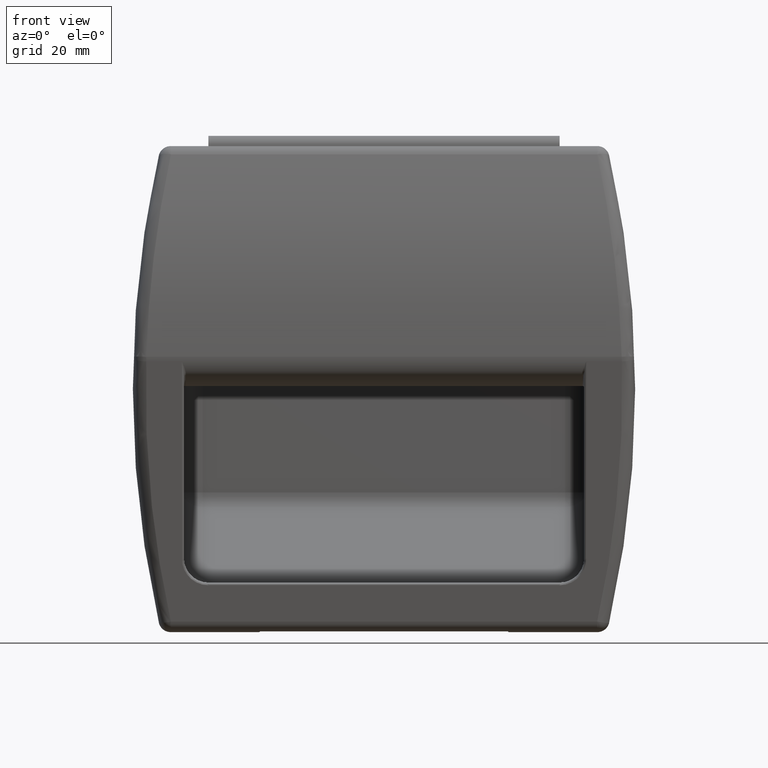
[diagram: clean part render]
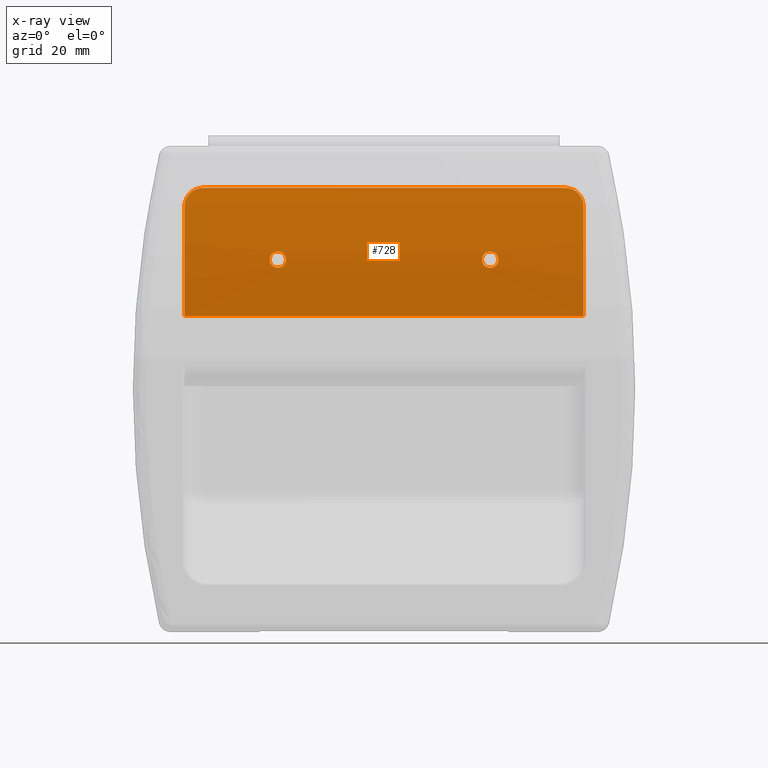
[diagram: x-ray — body ghosted, one internal face saturated and labeled with its STEP entity id]
A machine part, front view, then the same camera in x-ray: the body is ghosted and one INTERNAL B-rep face — a face not visible from any outside direction — is saturated and labeled: STEP entity #728.
In plain terms, the highlighted cylindrical surface (partial cylindrical patch) has radius 150 mm, axis along (-1, 0, 0).
Its self-contained STEP definition (entity closure, byte-faithful):
#728=ADVANCED_FACE('',(#6660,#6661,#6662),#6659,.F.);
#6659=CYLINDRICAL_SURFACE('',#13576,1.50000000000E+02);
#6660=FACE_OUTER_BOUND('',#13577,.T.);
#6661=FACE_BOUND('',#13578,.T.);
#6662=FACE_BOUND('',#13579,.T.);
#13573=CARTESIAN_POINT('',(-2.57120344491E+02,1.40175836261E+02,5.07089080271E+00));
#13574=DIRECTION('',(-1.00000000000E+00,4.62058807963E-16,1.49742358612E-15));
#13575=DIRECTION('',(9.36772324950E-31,9.55543180215E-01,-2.94851201022E-01));
#13576=AXIS2_PLACEMENT_3D('',#13573,#13574,#13575);
#13577=EDGE_LOOP('',(#19248,#19249,#19250,#19251,#19252,#19253));
#13578=EDGE_LOOP('',(#19254,#19255));
#13579=EDGE_LOOP('',(#19256,#19257));
#19248=ORIENTED_EDGE('',*,*,#21461,.T.);
#19249=ORIENTED_EDGE('',*,*,#21170,.T.);
#19250=ORIENTED_EDGE('',*,*,#21331,.T.);
#19251=ORIENTED_EDGE('',*,*,#21205,.F.);
#19252=ORIENTED_EDGE('',*,*,#21173,.F.);
#19253=ORIENTED_EDGE('',*,*,#21462,.T.);
#19254=ORIENTED_EDGE('',*,*,#21463,.T.);
#19255=ORIENTED_EDGE('',*,*,#21464,.T.);
#19256=ORIENTED_EDGE('',*,*,#21465,.F.);
#19257=ORIENTED_EDGE('',*,*,#21466,.F.);
#21170=EDGE_CURVE('',#30188,#30181,#30189,.T.);
#21173=EDGE_CURVE('',#30201,#30209,#30210,.T.);
#21205=EDGE_CURVE('',#30209,#30432,#30433,.T.);
#21331=EDGE_CURVE('',#30181,#30432,#31285,.T.);
#21461=EDGE_CURVE('',#32144,#30188,#32145,.T.);
#21462=EDGE_CURVE('',#30201,#32144,#32151,.T.);
#21463=EDGE_CURVE('',#32157,#32158,#32159,.T.);
#21464=EDGE_CURVE('',#32158,#32157,#32165,.T.);
#21465=EDGE_CURVE('',#32171,#32172,#32173,.T.);
#21466=EDGE_CURVE('',#32172,#32171,#32179,.T.);
#30181=VERTEX_POINT('',#39157);
#30188=VERTEX_POINT('',#39162);
#30189=CIRCLE('',#39166,1.50000000000E+02);
#30201=VERTEX_POINT('',#39171);
#30209=VERTEX_POINT('',#39177);
#30210=(BOUNDED_CURVE() B_SPLINE_CURVE(3,(#39178,#39179,#39180,#39181,#39182,#39183,#39184,#39185,#39186,#39187,#39188,#39189,#39190,#39191,#39192,#39193,#39194,#39195),.UNSPECIFIED.,.F.,.F.) B_SPLINE_CURVE_WITH_KNOTS((4,2,2,2,2,2,2,2,4),(0.00000000000E+00,9.08258828072E-04,1.81651765614E-03,2.72477648422E-03,3.63303531229E-03,4.54129414036E-03,5.44955296843E-03,6.35781179650E-03,7.26607062457E-03),.UNSPECIFIED.) CURVE() GEOMETRIC_REPRESENTATION_ITEM() RATIONAL_B_SPLINE_CURVE((1.00000000000E+00,1.00000000000E+00,1.00000000000E+00,1.00000000000E+00,1.00000000000E+00,1.00000000000E+00,1.00000000000E+00,1.00000000000E+00,1.00000000000E+00,1.00000000000E+00,1.00000000000E+00,1.00000000000E+00,1.00000000000E+00,1.00000000000E+00,1.00000000000E+00,1.00000000000E+00,1.00000000000E+00,1.00000000000E+00)) REPRESENTATION_ITEM('') );
#30432=VERTEX_POINT('',#39386);
#30433=CIRCLE('',#39390,1.50000000000E+02);
#31285=LINE('',#39967,#39968);
#32144=VERTEX_POINT('',#40553);
#32145=(BOUNDED_CURVE() B_SPLINE_CURVE(3,(#40554,#40555,#40556,#40557,#40558,#40559,#40560,#40561,#40562,#40563,#40564,#40565,#40566,#40567,#40568,#40569,#40570,#40571),.UNSPECIFIED.,.F.,.F.) B_SPLINE_CURVE_WITH_KNOTS((4,2,2,2,2,2,2,2,4),(0.00000000000E+00,9.08258828072E-04,1.81651765614E-03,2.72477648422E-03,3.63303531229E-03,4.54129414036E-03,5.44955296843E-03,6.35781179650E-03,7.26607062457E-03),.UNSPECIFIED.) CURVE() GEOMETRIC_REPRESENTATION_ITEM() RATIONAL_B_SPLINE_CURVE((1.00000000000E+00,1.00000000000E+00,1.00000000000E+00,1.00000000000E+00,1.00000000000E+00,1.00000000000E+00,1.00000000000E+00,1.00000000000E+00,1.00000000000E+00,1.00000000000E+00,1.00000000000E+00,1.00000000000E+00,1.00000000000E+00,1.00000000000E+00,1.00000000000E+00,1.00000000000E+00,1.00000000000E+00,1.00000000000E+00)) REPRESENTATION_ITEM('') );
#32151=LINE('',#40572,#40573);
#32157=VERTEX_POINT('',#40575);
#32158=VERTEX_POINT('',#40576);
#32159=(BOUNDED_CURVE() B_SPLINE_CURVE(3,(#40577,#40578,#40579,#40580,#40581,#40582,#40583,#40584,#40585,#40586,#40587,#40588,#40589,#40590,#40591,#40592,#40593,#40594,#40595,#40596,#40597,#40598,#40599,#40600,#40601,#40602,#40603,#40604,#40605,#40606,#40607,#40608),.UNSPECIFIED.,.F.,.F.) B_SPLINE_CURVE_WITH_KNOTS((4,2,2,2,2,2,2,2,2,2,2,2,2,2,2,4),(1.23330994336E-02,1.27313672789E-02,1.31296351242E-02,1.35279029695E-02,1.39261708148E-02,1.47227065054E-02,1.51209743507E-02,1.55192421960E-02,1.59175100413E-02,1.63157778866E-02,1.67140457319E-02,1.71123135772E-02,1.75105814225E-02,1.79088492678E-02,1.83071171131E-02,1.87053849584E-02),.UNSPECIFIED.) CURVE() GEOMETRIC_REPRESENTATION_ITEM() RATIONAL_B_SPLINE_CURVE((1.00000000000E+00,1.00000000000E+00,1.00000000000E+00,1.00000000000E+00,1.00000000000E+00,1.00000000000E+00,1.00000000000E+00,1.00000000000E+00,1.00000000000E+00,1.00000000000E+00,1.00000000000E+00,1.00000000000E+00,1.00000000000E+00,1.00000000000E+00,1.00000000000E+00,1.00000000000E+00,1.00000000000E+00,1.00000000000E+00,1.00000000000E+00,1.00000000000E+00,1.00000000000E+00,1.00000000000E+00,1.00000000000E+00,1.00000000000E+00,1.00000000000E+00,1.00000000000E+00,1.00000000000E+00,1.00000000000E+00,1.00000000000E+00,1.00000000000E+00,1.00000000000E+00,1.00000000000E+00)) REPRESENTATION_ITEM('') );
#32165=(BOUNDED_CURVE() B_SPLINE_CURVE(3,(#40609,#40610,#40611,#40612,#40613,#40614,#40615,#40616,#40617,#40618,#40619,#40620,#40621,#40622,#40623,#40624,#40625,#40626,#40627,#40628,#40629,#40630,#40631,#40632,#40633,#40634,#40635,#40636,#40637,#40638),.UNSPECIFIED.,.F.,.F.) B_SPLINE_CURVE_WITH_KNOTS((4,2,2,2,2,2,2,2,2,2,2,2,2,2,4),(1.87053849584E-02,1.91036528037E-02,1.95019206490E-02,2.02984563396E-02,2.06967241849E-02,2.10949920302E-02,2.14932598755E-02,2.18915277208E-02,2.26880634114E-02,2.30863312567E-02,2.34845991020E-02,2.38828669473E-02,2.42811347926E-02,2.46794026379E-02,2.50776704832E-02),.UNSPECIFIED.) CURVE() GEOMETRIC_REPRESENTATION_ITEM() RATIONAL_B_SPLINE_CURVE((1.00000000000E+00,1.00000000000E+00,1.00000000000E+00,1.00000000000E+00,1.00000000000E+00,1.00000000000E+00,1.00000000000E+00,1.00000000000E+00,1.00000000000E+00,1.00000000000E+00,1.00000000000E+00,1.00000000000E+00,1.00000000000E+00,1.00000000000E+00,1.00000000000E+00,1.00000000000E+00,1.00000000000E+00,1.00000000000E+00,1.00000000000E+00,1.00000000000E+00,1.00000000000E+00,1.00000000000E+00,1.00000000000E+00,1.00000000000E+00,1.00000000000E+00,1.00000000000E+00,1.00000000000E+00,1.00000000000E+00,1.00000000000E+00,1.00000000000E+00)) REPRESENTATION_ITEM('') );
#32171=VERTEX_POINT('',#40639);
#32172=VERTEX_POINT('',#40640);
#32173=(BOUNDED_CURVE() B_SPLINE_CURVE(3,(#40641,#40642,#40643,#40644,#40645,#40646,#40647,#40648,#40649,#40650,#40651,#40652,#40653,#40654,#40655,#40656,#40657,#40658,#40659,#40660,#40661,#40662,#40663,#40664,#40665,#40666,#40667,#40668,#40669,#40670),.UNSPECIFIED.,.F.,.F.) B_SPLINE_CURVE_WITH_KNOTS((4,2,2,2,2,2,2,2,2,2,2,2,2,2,4),(1.87053849584E-02,1.91036528037E-02,1.95019206490E-02,2.02984563396E-02,2.06967241849E-02,2.10949920302E-02,2.14932598755E-02,2.18915277208E-02,2.26880634114E-02,2.30863312567E-02,2.34845991020E-02,2.38828669473E-02,2.42811347926E-02,2.46794026379E-02,2.50776704832E-02),.UNSPECIFIED.) CURVE() GEOMETRIC_REPRESENTATION_ITEM() RATIONAL_B_SPLINE_CURVE((1.00000000000E+00,1.00000000000E+00,1.00000000000E+00,1.00000000000E+00,1.00000000000E+00,1.00000000000E+00,1.00000000000E+00,1.00000000000E+00,1.00000000000E+00,1.00000000000E+00,1.00000000000E+00,1.00000000000E+00,1.00000000000E+00,1.00000000000E+00,1.00000000000E+00,1.00000000000E+00,1.00000000000E+00,1.00000000000E+00,1.00000000000E+00,1.00000000000E+00,1.00000000000E+00,1.00000000000E+00,1.00000000000E+00,1.00000000000E+00,1.00000000000E+00,1.00000000000E+00,1.00000000000E+00,1.00000000000E+00,1.00000000000E+00,1.00000000000E+00)) REPRESENTATION_ITEM('') );
#32179=(BOUNDED_CURVE() B_SPLINE_CURVE(3,(#40671,#40672,#40673,#40674,#40675,#40676,#40677,#40678,#40679,#40680,#40681,#40682,#40683,#40684,#40685,#40686,#40687,#40688,#40689,#40690,#40691,#40692,#40693,#40694,#40695,#40696,#40697,#40698,#40699,#40700,#40701,#40702),.UNSPECIFIED.,.F.,.F.) B_SPLINE_CURVE_WITH_KNOTS((4,2,2,2,2,2,2,2,2,2,2,2,2,2,2,4),(1.23330994336E-02,1.27313672789E-02,1.31296351242E-02,1.35279029695E-02,1.39261708148E-02,1.47227065054E-02,1.51209743507E-02,1.55192421960E-02,1.59175100413E-02,1.63157778866E-02,1.67140457319E-02,1.71123135772E-02,1.75105814225E-02,1.79088492678E-02,1.83071171131E-02,1.87053849584E-02),.UNSPECIFIED.) CURVE() GEOMETRIC_REPRESENTATION_ITEM() RATIONAL_B_SPLINE_CURVE((1.00000000000E+00,1.00000000000E+00,1.00000000000E+00,1.00000000000E+00,1.00000000000E+00,1.00000000000E+00,1.00000000000E+00,1.00000000000E+00,1.00000000000E+00,1.00000000000E+00,1.00000000000E+00,1.00000000000E+00,1.00000000000E+00,1.00000000000E+00,1.00000000000E+00,1.00000000000E+00,1.00000000000E+00,1.00000000000E+00,1.00000000000E+00,1.00000000000E+00,1.00000000000E+00,1.00000000000E+00,1.00000000000E+00,1.00000000000E+00,1.00000000000E+00,1.00000000000E+00,1.00000000000E+00,1.00000000000E+00,1.00000000000E+00,1.00000000000E+00,1.00000000000E+00,1.00000000000E+00)) REPRESENTATION_ITEM('') );
#39157=CARTESIAN_POINT('',(-1.49650344492E+02,-9.27738849445E+00,1.78667342710E+01));
#39162=CARTESIAN_POINT('',(-1.49650344492E+02,-4.47200607529E+00,4.47823716027E+01));
#39163=CARTESIAN_POINT('',(-1.49650344492E+02,1.40175836261E+02,5.07089080271E+00));
#39164=DIRECTION('',(1.00000000000E+00,4.38994859223E-14,-1.11509978121E-14));
#39165=DIRECTION('',(-4.52852570258E-14,9.64318948912E-01,-2.64743205333E-01));
#39166=AXIS2_PLACEMENT_3D('',#39163,#39164,#39165);
#39171=CARTESIAN_POINT('',(-2.42850344491E+02,-3.15599536924E+00,4.92974217699E+01));
#39177=CARTESIAN_POINT('',(-2.47350344491E+02,-4.47200607529E+00,4.47823716027E+01));
#39178=CARTESIAN_POINT('',(-2.42850344491E+02,-3.15599536924E+00,4.92974217699E+01));
#39179=CARTESIAN_POINT('',(-2.43154456178E+02,-3.15599536924E+00,4.92974217699E+01));
#39180=CARTESIAN_POINT('',(-2.43457081858E+02,-3.16555787797E+00,4.92664650340E+01));
#39181=CARTESIAN_POINT('',(-2.44049434896E+02,-3.20303269073E+00,4.91447378490E+01));
#39182=CARTESIAN_POINT('',(-2.44334160618E+02,-3.23051899989E+00,4.90553440949E+01));
#39183=CARTESIAN_POINT('',(-2.44881831478E+02,-3.30182166367E+00,4.88221940642E+01));
#39184=CARTESIAN_POINT('',(-2.45147485942E+02,-3.34632330578E+00,4.86761705560E+01));
#39185=CARTESIAN_POINT('',(-2.45636047399E+02,-3.44781681889E+00,4.83407068996E+01));
#39186=CARTESIAN_POINT('',(-2.45860622977E+02,-3.50479194943E+00,4.81513426557E+01));
#39187=CARTESIAN_POINT('',(-2.46271396490E+02,-3.63035518590E+00,4.77303276994E+01));
#39188=CARTESIAN_POINT('',(-2.46457536361E+02,-3.69929200626E+00,4.74974398589E+01));
#39189=CARTESIAN_POINT('',(-2.46775483079E+02,-3.84224227124E+00,4.70096277248E+01));
#39190=CARTESIAN_POINT('',(-2.46909814727E+02,-3.91693235619E+00,4.67524607495E+01));
#39191=CARTESIAN_POINT('',(-2.47128935869E+02,-4.07236058019E+00,4.62113447266E+01));
#39192=CARTESIAN_POINT('',(-2.47212015022E+02,-4.15228406368E+00,4.59301658543E+01));
#39193=CARTESIAN_POINT('',(-2.47322211302E+02,-4.31156050572E+00,4.53633075802E+01));
#39194=CARTESIAN_POINT('',(-2.47350344491E+02,-4.39159764816E+00,4.50752568151E+01));
#39195=CARTESIAN_POINT('',(-2.47350344491E+02,-4.47200607529E+00,4.47823716027E+01));
#39386=CARTESIAN_POINT('',(-2.47350344491E+02,-9.27738849445E+00,1.78667342710E+01));
#39387=CARTESIAN_POINT('',(-2.47350344491E+02,1.40175836261E+02,5.07089080271E+00));
#39388=DIRECTION('',(1.00000000000E+00,4.38844356301E-14,-1.12058180365E-14));
#39389=DIRECTION('',(-4.52852570258E-14,9.64318948912E-01,-2.64743205333E-01));
#39390=AXIS2_PLACEMENT_3D('',#39387,#39388,#39389);
#39967=CARTESIAN_POINT('',(-1.49650344492E+02,-9.27738849445E+00,1.78667342710E+01));
#39968=VECTOR('',#39969,9.76999999995E+01);
#39969=DIRECTION('',(-1.00000000000E+00,0.00000000000E+00,0.00000000000E+00));
#40553=CARTESIAN_POINT('',(-1.54150344492E+02,-3.15599536924E+00,4.92974217699E+01));
#40554=CARTESIAN_POINT('',(-1.54150344492E+02,-3.15599536924E+00,4.92974217699E+01));
#40555=CARTESIAN_POINT('',(-1.53846232804E+02,-3.15599536924E+00,4.92974217699E+01));
#40556=CARTESIAN_POINT('',(-1.53543607125E+02,-3.16555787797E+00,4.92664650340E+01));
#40557=CARTESIAN_POINT('',(-1.52951254086E+02,-3.20303269073E+00,4.91447378490E+01));
#40558=CARTESIAN_POINT('',(-1.52666528364E+02,-3.23051899989E+00,4.90553440949E+01));
#40559=CARTESIAN_POINT('',(-1.52118857505E+02,-3.30182166367E+00,4.88221940642E+01));
#40560=CARTESIAN_POINT('',(-1.51853203041E+02,-3.34632330578E+00,4.86761705560E+01));
#40561=CARTESIAN_POINT('',(-1.51364641584E+02,-3.44781681889E+00,4.83407068996E+01));
#40562=CARTESIAN_POINT('',(-1.51140066006E+02,-3.50479194943E+00,4.81513426557E+01));
#40563=CARTESIAN_POINT('',(-1.50729292492E+02,-3.63035518590E+00,4.77303276994E+01));
#40564=CARTESIAN_POINT('',(-1.50543152622E+02,-3.69929200626E+00,4.74974398589E+01));
#40565=CARTESIAN_POINT('',(-1.50225205903E+02,-3.84224227124E+00,4.70096277248E+01));
#40566=CARTESIAN_POINT('',(-1.50090874256E+02,-3.91693235619E+00,4.67524607495E+01));
#40567=CARTESIAN_POINT('',(-1.49871753114E+02,-4.07236058019E+00,4.62113447266E+01));
#40568=CARTESIAN_POINT('',(-1.49788673960E+02,-4.15228406368E+00,4.59301658543E+01));
#40569=CARTESIAN_POINT('',(-1.49678477680E+02,-4.31156050572E+00,4.53633075802E+01));
#40570=CARTESIAN_POINT('',(-1.49650344492E+02,-4.39159764816E+00,4.50752568151E+01));
#40571=CARTESIAN_POINT('',(-1.49650344492E+02,-4.47200607529E+00,4.47823716027E+01));
#40572=CARTESIAN_POINT('',(-2.42850344491E+02,-3.15599536924E+00,4.92974217699E+01));
#40573=VECTOR('',#40574,8.86999999995E+01);
#40574=DIRECTION('',(1.00000000000E+00,0.00000000000E+00,0.00000000000E+00));
#40575=CARTESIAN_POINT('',(-1.72908265205E+02,-7.78125861827E+00,2.97426980887E+01));
#40576=CARTESIAN_POINT('',(-1.72094665812E+02,-7.07620042028E+00,3.36512633175E+01));
#40577=CARTESIAN_POINT('',(-1.72908265205E+02,-7.78125861827E+00,2.97426980887E+01));
#40578=CARTESIAN_POINT('',(-1.72778085310E+02,-7.78577212071E+00,2.97156305658E+01));
#40579=CARTESIAN_POINT('',(-1.72646520609E+02,-7.78809561074E+00,2.97016615117E+01));
#40580=CARTESIAN_POINT('',(-1.72380623456E+02,-7.78838776405E+00,2.96999064007E+01));
#40581=CARTESIAN_POINT('',(-1.72247241061E+02,-7.78630613644E+00,2.97124221609E+01));
#40582=CARTESIAN_POINT('',(-1.71988460251E+02,-7.77791689813E+00,2.97627432372E+01));
#40583=CARTESIAN_POINT('',(-1.71862933393E+02,-7.77165459323E+00,2.98002761919E+01));
#40584=CARTESIAN_POINT('',(-1.71619557928E+02,-7.75496447237E+00,2.98999211135E+01));
#40585=CARTESIAN_POINT('',(-1.71501617600E+02,-7.74445674297E+00,2.99625017001E+01));
#40586=CARTESIAN_POINT('',(-1.71174886365E+02,-7.70785049140E+00,3.01793892587E+01));
#40587=CARTESIAN_POINT('',(-1.70984774644E+02,-7.67566792900E+00,3.03687275243E+01));
#40588=CARTESIAN_POINT('',(-1.70767319034E+02,-7.61986759965E+00,3.06920125335E+01));
#40589=CARTESIAN_POINT('',(-1.70704750618E+02,-7.59971108141E+00,3.08080726275E+01));
#40590=CARTESIAN_POINT('',(-1.70604180649E+02,-7.55759763478E+00,3.10487165391E+01));
#40591=CARTESIAN_POINT('',(-1.70566231252E+02,-7.53580343749E+00,3.11723873617E+01));
#40592=CARTESIAN_POINT('',(-1.70514542468E+02,-7.49071197597E+00,3.14262917067E+01));
#40593=CARTESIAN_POINT('',(-1.70501008083E+02,-7.46722480033E+00,3.15575627906E+01));
#40594=CARTESIAN_POINT('',(-1.70499729560E+02,-7.42058447069E+00,3.18162429175E+01));
#40595=CARTESIAN_POINT('',(-1.70511572603E+02,-7.39723563219E+00,3.19447685512E+01));
#40596=CARTESIAN_POINT('',(-1.70560620908E+02,-7.35049751903E+00,3.22001682472E+01));
#40597=CARTESIAN_POINT('',(-1.70597929549E+02,-7.32729118397E+00,3.23260229017E+01));
#40598=CARTESIAN_POINT('',(-1.70695075965E+02,-7.28283937704E+00,3.25655050182E+01));
#40599=CARTESIAN_POINT('',(-1.70755154515E+02,-7.26134604526E+00,3.26804862549E+01));
#40600=CARTESIAN_POINT('',(-1.70899291354E+02,-7.22004491828E+00,3.29001325967E+01));
#40601=CARTESIAN_POINT('',(-1.70981002633E+02,-7.20090704498E+00,3.30012405091E+01));
#40602=CARTESIAN_POINT('',(-1.71163071057E+02,-7.16565325312E+00,3.31866225193E+01));
#40603=CARTESIAN_POINT('',(-1.71264647490E+02,-7.14938813437E+00,3.32716694602E+01));
#40604=CARTESIAN_POINT('',(-1.71481666430E+02,-7.12102522295E+00,3.34194402720E+01));
#40605=CARTESIAN_POINT('',(-1.71596264169E+02,-7.10896395880E+00,3.34819863539E+01));
#40606=CARTESIAN_POINT('',(-1.71837581734E+02,-7.08914871678E+00,3.35845178203E+01));
#40607=CARTESIAN_POINT('',(-1.71965213523E+02,-7.08139468447E+00,3.36245013857E+01));
#40608=CARTESIAN_POINT('',(-1.72094665812E+02,-7.07620042028E+00,3.36512633175E+01));
#40609=CARTESIAN_POINT('',(-1.72094665812E+02,-7.07620042028E+00,3.36512633175E+01));
#40610=CARTESIAN_POINT('',(-1.72224118101E+02,-7.07100615609E+00,3.36780252494E+01));
#40611=CARTESIAN_POINT('',(-1.72357332680E+02,-7.06829404447E+00,3.36919685435E+01));
#40612=CARTESIAN_POINT('',(-1.72620355306E+02,-7.06800063162E+00,3.36934779954E+01));
#40613=CARTESIAN_POINT('',(-1.72750977066E+02,-7.07034877695E+00,3.36814071254E+01));
#40614=CARTESIAN_POINT('',(-1.73140136299E+02,-7.08495376588E+00,3.36061730155E+01));
#40615=CARTESIAN_POINT('',(-1.73386872329E+02,-7.10454583660E+00,3.35052193607E+01));
#40616=CARTESIAN_POINT('',(-1.73716532417E+02,-7.14649663391E+00,3.32867680378E+01));
#40617=CARTESIAN_POINT('',(-1.73817547103E+02,-7.16226859732E+00,3.32043507213E+01));
#40618=CARTESIAN_POINT('',(-1.74002466273E+02,-7.19716352492E+00,3.30209828299E+01));
#40619=CARTESIAN_POINT('',(-1.74087008531E+02,-7.21651237655E+00,3.29188279617E+01));
#40620=CARTESIAN_POINT('',(-1.74232412953E+02,-7.25709859921E+00,3.27031502002E+01));
#40621=CARTESIAN_POINT('',(-1.74293985717E+02,-7.27840212042E+00,3.25892928753E+01));
#40622=CARTESIAN_POINT('',(-1.74394853228E+02,-7.32294850625E+00,3.23495154281E+01));
#40623=CARTESIAN_POINT('',(-1.74433689885E+02,-7.34614547939E+00,3.22238177318E+01));
#40624=CARTESIAN_POINT('',(-1.74511584487E+02,-7.41565662140E+00,3.18443362076E+01));
#40625=CARTESIAN_POINT('',(-1.74513536294E+02,-7.46363469954E+00,3.15784943535E+01));
#40626=CARTESIAN_POINT('',(-1.74441180998E+02,-7.53130222765E+00,3.11978471367E+01));
#40627=CARTESIAN_POINT('',(-1.74404287570E+02,-7.55353161909E+00,3.10718321987E+01));
#40628=CARTESIAN_POINT('',(-1.74306601111E+02,-7.59591699230E+00,3.08298509559E+01));
#40629=CARTESIAN_POINT('',(-1.74246549457E+02,-7.61588359632E+00,3.07149882350E+01));
#40630=CARTESIAN_POINT('',(-1.74104308426E+02,-7.65347689941E+00,3.04973801793E+01));
#40631=CARTESIAN_POINT('',(-1.74021058853E+02,-7.67124655829E+00,3.03937864257E+01));
#40632=CARTESIAN_POINT('',(-1.73838230749E+02,-7.70305515486E+00,3.02073665804E+01));
#40633=CARTESIAN_POINT('',(-1.73738362339E+02,-7.71725191097E+00,3.01236374678E+01));
#40634=CARTESIAN_POINT('',(-1.73521435077E+02,-7.74227414020E+00,2.99754739120E+01));
#40635=CARTESIAN_POINT('',(-1.73404540690E+02,-7.75300683540E+00,2.99115847383E+01));
#40636=CARTESIAN_POINT('',(-1.73163645861E+02,-7.77016613531E+00,2.98091823766E+01));
#40637=CARTESIAN_POINT('',(-1.73038445099E+02,-7.77674511583E+00,2.97697656116E+01));
#40638=CARTESIAN_POINT('',(-1.72908265205E+02,-7.78125861827E+00,2.97426980887E+01));
#40639=CARTESIAN_POINT('',(-2.24906023171E+02,-7.07620042028E+00,3.36512633175E+01));
#40640=CARTESIAN_POINT('',(-2.24092423778E+02,-7.78125861827E+00,2.97426980887E+01));
#40641=CARTESIAN_POINT('',(-2.24906023171E+02,-7.07620042028E+00,3.36512633175E+01));
#40642=CARTESIAN_POINT('',(-2.24776570882E+02,-7.07100615609E+00,3.36780252494E+01));
#40643=CARTESIAN_POINT('',(-2.24643356303E+02,-7.06829404447E+00,3.36919685435E+01));
#40644=CARTESIAN_POINT('',(-2.24380333677E+02,-7.06800063162E+00,3.36934779954E+01));
#40645=CARTESIAN_POINT('',(-2.24249711916E+02,-7.07034877695E+00,3.36814071254E+01));
#40646=CARTESIAN_POINT('',(-2.23860552684E+02,-7.08495376588E+00,3.36061730155E+01));
#40647=CARTESIAN_POINT('',(-2.23613816654E+02,-7.10454583660E+00,3.35052193607E+01));
#40648=CARTESIAN_POINT('',(-2.23284156566E+02,-7.14649663391E+00,3.32867680378E+01));
#40649=CARTESIAN_POINT('',(-2.23183141879E+02,-7.16226859732E+00,3.32043507213E+01));
#40650=CARTESIAN_POINT('',(-2.22998222710E+02,-7.19716352492E+00,3.30209828299E+01));
#40651=CARTESIAN_POINT('',(-2.22913680452E+02,-7.21651237655E+00,3.29188279617E+01));
#40652=CARTESIAN_POINT('',(-2.22768276030E+02,-7.25709859921E+00,3.27031502002E+01));
#40653=CARTESIAN_POINT('',(-2.22706703266E+02,-7.27840212042E+00,3.25892928753E+01));
#40654=CARTESIAN_POINT('',(-2.22605835754E+02,-7.32294850625E+00,3.23495154281E+01));
#40655=CARTESIAN_POINT('',(-2.22566999097E+02,-7.34614547939E+00,3.22238177318E+01));
#40656=CARTESIAN_POINT('',(-2.22489104495E+02,-7.41565662140E+00,3.18443362076E+01));
#40657=CARTESIAN_POINT('',(-2.22487152688E+02,-7.46363469954E+00,3.15784943535E+01));
#40658=CARTESIAN_POINT('',(-2.22559507985E+02,-7.53130222765E+00,3.11978471367E+01));
#40659=CARTESIAN_POINT('',(-2.22596401412E+02,-7.55353161909E+00,3.10718321987E+01));
#40660=CARTESIAN_POINT('',(-2.22694087871E+02,-7.59591699230E+00,3.08298509559E+01));
#40661=CARTESIAN_POINT('',(-2.22754139525E+02,-7.61588359632E+00,3.07149882350E+01));
#40662=CARTESIAN_POINT('',(-2.22896380557E+02,-7.65347689941E+00,3.04973801793E+01));
#40663=CARTESIAN_POINT('',(-2.22979630129E+02,-7.67124655829E+00,3.03937864257E+01));
#40664=CARTESIAN_POINT('',(-2.23162458233E+02,-7.70305515486E+00,3.02073665804E+01));
#40665=CARTESIAN_POINT('',(-2.23262326643E+02,-7.71725191097E+00,3.01236374678E+01));
#40666=CARTESIAN_POINT('',(-2.23479253906E+02,-7.74227414020E+00,2.99754739120E+01));
#40667=CARTESIAN_POINT('',(-2.23596148292E+02,-7.75300683540E+00,2.99115847383E+01));
#40668=CARTESIAN_POINT('',(-2.23837043122E+02,-7.77016613531E+00,2.98091823766E+01));
#40669=CARTESIAN_POINT('',(-2.23962243884E+02,-7.77674511583E+00,2.97697656116E+01));
#40670=CARTESIAN_POINT('',(-2.24092423778E+02,-7.78125861827E+00,2.97426980887E+01));
#40671=CARTESIAN_POINT('',(-2.24092423778E+02,-7.78125861827E+00,2.97426980887E+01));
#40672=CARTESIAN_POINT('',(-2.24222603672E+02,-7.78577212071E+00,2.97156305658E+01));
#40673=CARTESIAN_POINT('',(-2.24354168374E+02,-7.78809561074E+00,2.97016615117E+01));
#40674=CARTESIAN_POINT('',(-2.24620065526E+02,-7.78838776405E+00,2.96999064007E+01));
#40675=CARTESIAN_POINT('',(-2.24753447921E+02,-7.78630613644E+00,2.97124221609E+01));
#40676=CARTESIAN_POINT('',(-2.25012228731E+02,-7.77791689813E+00,2.97627432372E+01));
#40677=CARTESIAN_POINT('',(-2.25137755590E+02,-7.77165459323E+00,2.98002761919E+01));
#40678=CARTESIAN_POINT('',(-2.25381131054E+02,-7.75496447237E+00,2.98999211135E+01));
#40679=CARTESIAN_POINT('',(-2.25499071382E+02,-7.74445674297E+00,2.99625017001E+01));
#40680=CARTESIAN_POINT('',(-2.25825802617E+02,-7.70785049140E+00,3.01793892587E+01));
#40681=CARTESIAN_POINT('',(-2.26015914339E+02,-7.67566792900E+00,3.03687275243E+01));
#40682=CARTESIAN_POINT('',(-2.26233369948E+02,-7.61986759965E+00,3.06920125335E+01));
#40683=CARTESIAN_POINT('',(-2.26295938365E+02,-7.59971108141E+00,3.08080726275E+01));
#40684=CARTESIAN_POINT('',(-2.26396508333E+02,-7.55759763478E+00,3.10487165391E+01));
#40685=CARTESIAN_POINT('',(-2.26434457731E+02,-7.53580343749E+00,3.11723873617E+01));
#40686=CARTESIAN_POINT('',(-2.26486146515E+02,-7.49071197597E+00,3.14262917067E+01));
#40687=CARTESIAN_POINT('',(-2.26499680899E+02,-7.46722480033E+00,3.15575627906E+01));
#40688=CARTESIAN_POINT('',(-2.26500959422E+02,-7.42058447069E+00,3.18162429175E+01));
#40689=CARTESIAN_POINT('',(-2.26489116380E+02,-7.39723563219E+00,3.19447685512E+01));
#40690=CARTESIAN_POINT('',(-2.26440068075E+02,-7.35049751903E+00,3.22001682472E+01));
#40691=CARTESIAN_POINT('',(-2.26402759433E+02,-7.32729118397E+00,3.23260229017E+01));
#40692=CARTESIAN_POINT('',(-2.26305613018E+02,-7.28283937704E+00,3.25655050182E+01));
#40693=CARTESIAN_POINT('',(-2.26245534467E+02,-7.26134604526E+00,3.26804862549E+01));
#40694=CARTESIAN_POINT('',(-2.26101397629E+02,-7.22004491828E+00,3.29001325967E+01));
#40695=CARTESIAN_POINT('',(-2.26019686349E+02,-7.20090704498E+00,3.30012405091E+01));
#40696=CARTESIAN_POINT('',(-2.25837617925E+02,-7.16565325312E+00,3.31866225193E+01));
#40697=CARTESIAN_POINT('',(-2.25736041493E+02,-7.14938813437E+00,3.32716694602E+01));
#40698=CARTESIAN_POINT('',(-2.25519022552E+02,-7.12102522295E+00,3.34194402720E+01));
#40699=CARTESIAN_POINT('',(-2.25404424814E+02,-7.10896395880E+00,3.34819863539E+01));
#40700=CARTESIAN_POINT('',(-2.25163107248E+02,-7.08914871678E+00,3.35845178203E+01));
#40701=CARTESIAN_POINT('',(-2.25035475460E+02,-7.08139468447E+00,3.36245013857E+01));
#40702=CARTESIAN_POINT('',(-2.24906023171E+02,-7.07620042028E+00,3.36512633175E+01));